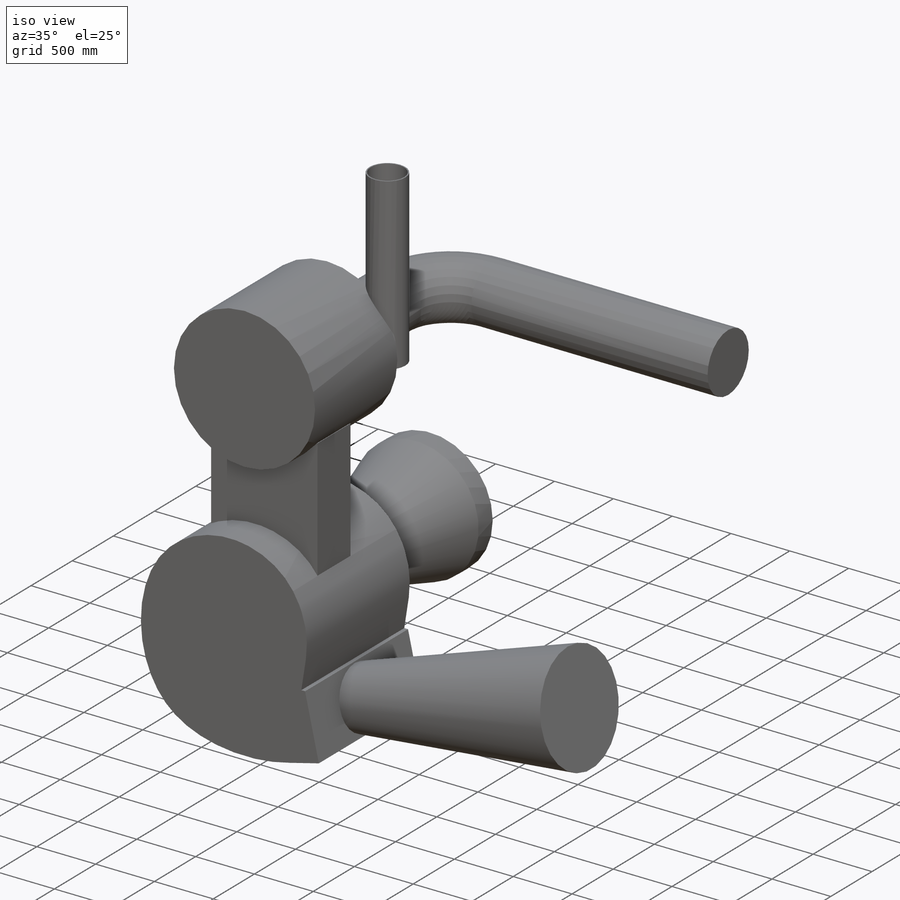
[diagram: iso view]
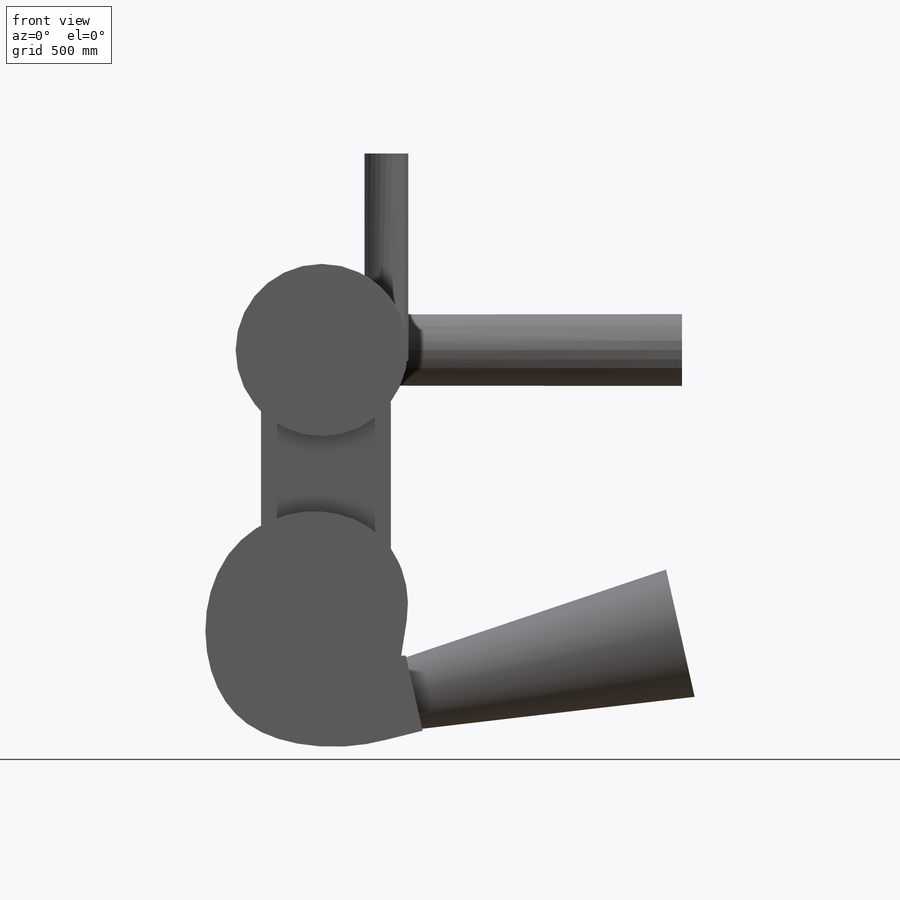
[diagram: front view]
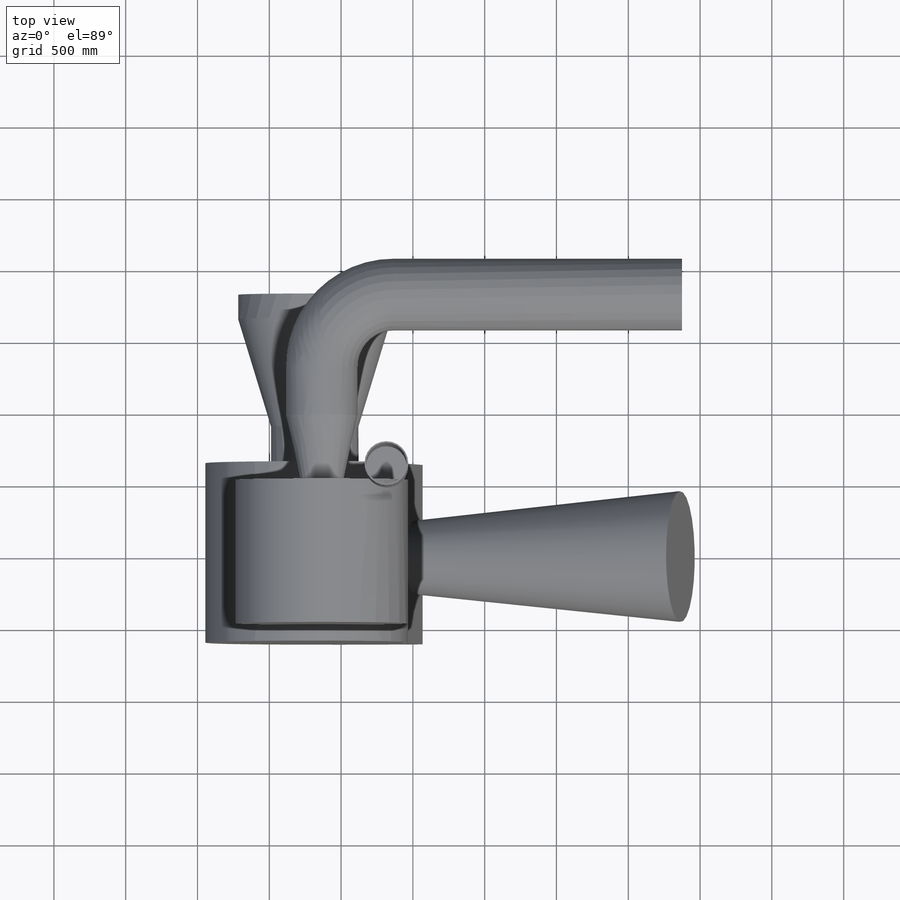
[diagram: top view]
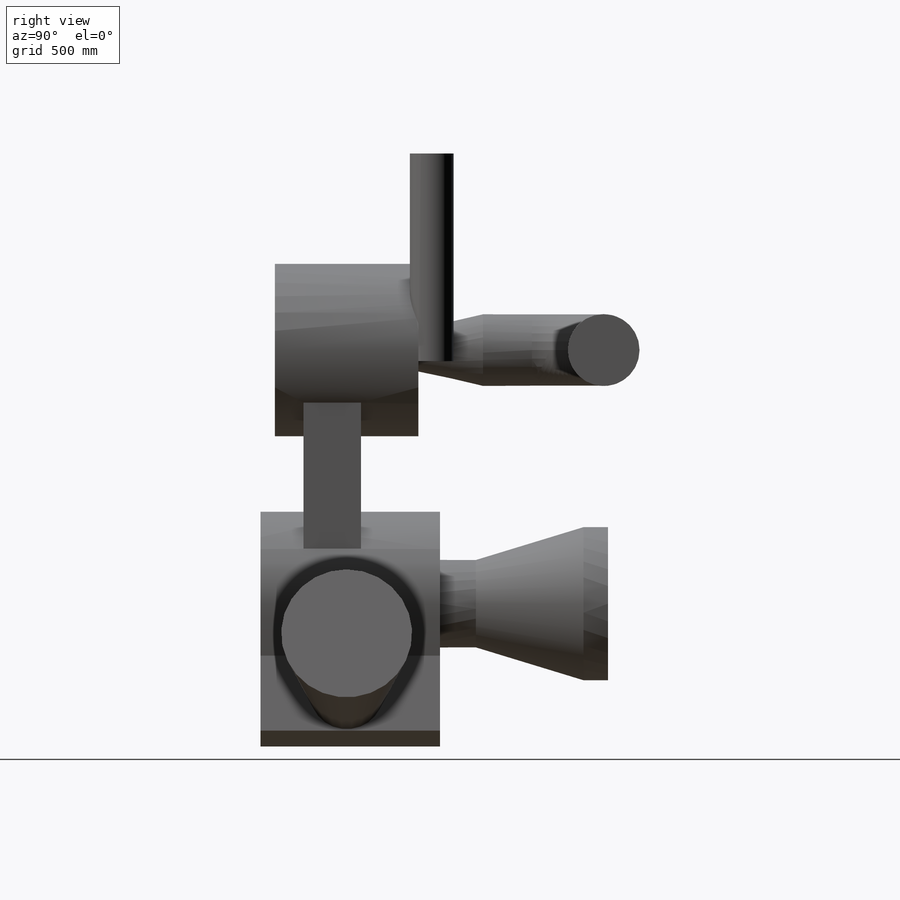
[diagram: right view]
SOLIDWORKS PART (.sldprt)
format: sldprt  version: not decoded by parser v0  size: 428,544 bytes
history: native  units: mm
features: sketch x16, extrude x6, material x1, plane x1, cut_extrude x1, sweep x1, fillet x1, revolve x1 (+16 scaffold rows collapsed)
feature tree (44):
  scaffold x16  (default folders/planes/origin — collapsed)
  material  "Material <not specified>"
  sketch  "Sketch1"  dims[c1.D1=1200.0mm c1.D2=3665.0mm c1.D3=825.0mm c2.D2=867.0mm]
  extrude  "Extrude1"  Depth=500mm
  sketch  "Sketch2"  dims[D1=300.0mm D2=~3695.540126mm]
  sketch  "Sketch10"  dims[D3=1000.0mm D1=3665.0mm D2=998.0mm]
  extrude  "Extrude6"  Depth=150mm
  sketch  "Sketch11"
  extrude  "Extrude7"  Depth=1900mm
  sketch  "Sketch12"  dims[c1.D1=609.6mm c1.D2=899.5mm c2.D1=250.0mm c2.D5=10.0mm c2.D6=10.0mm c2.D7=5.0mm]
  plane  "Plane2"  Offset=450mm
  sketch  "Sketch16"  dims[c1.D1=500.0mm c2.D1=12.5mm]
  sketch  "Sketch17"
  sketch  "Sketch18"
  extrude  "Extrude8"  Depth=750mm
  sketch  "Sketch19"  dims[c1.D1=0.0mm c2.D1=2420.0mm c2.D5=10.0mm c2.D6=1.0mm c2.D7=5.0mm]
  sketch  "Sketch20"
  extrude  "Extrude9"  Depth=300mm
  sketch  "Sketch21"  dims[D1=0.0mm]
  cut_extrude  "Cut-Extrude1"  Depth=780mm
  sketch  "Sketch22"  dims[D1=0.0mm]
  sketch  "3DSketch2"  dims[D1=500.0mm]
  sweep  "Sweep1"
  sketch  "Sketch23"  dims[c1.D3=304.8mm c1.D2=304.8mm c1.D1=593.0mm c2.D2=3395.0mm c2.D1=1600.0mm c2.D5=10.0mm c2.D6=1.0mm c2.D7=5.0mm]
  sketch  "Sketch24"  dims[D1=0.0mm]
  extrude  "Extrude11"  Depth=10mm
  fillet  "Fillet1"  Radius=180mm
  sketch  "Sketch25"
  revolve  "Revolve1"  Angle=360deg
decode coverage: 20 of 26 modeling features carry decoded parameters
note: ~ marks probable driven/reference dimensions
note: suppression state not decoded; provenance and decode notes live in map.json
